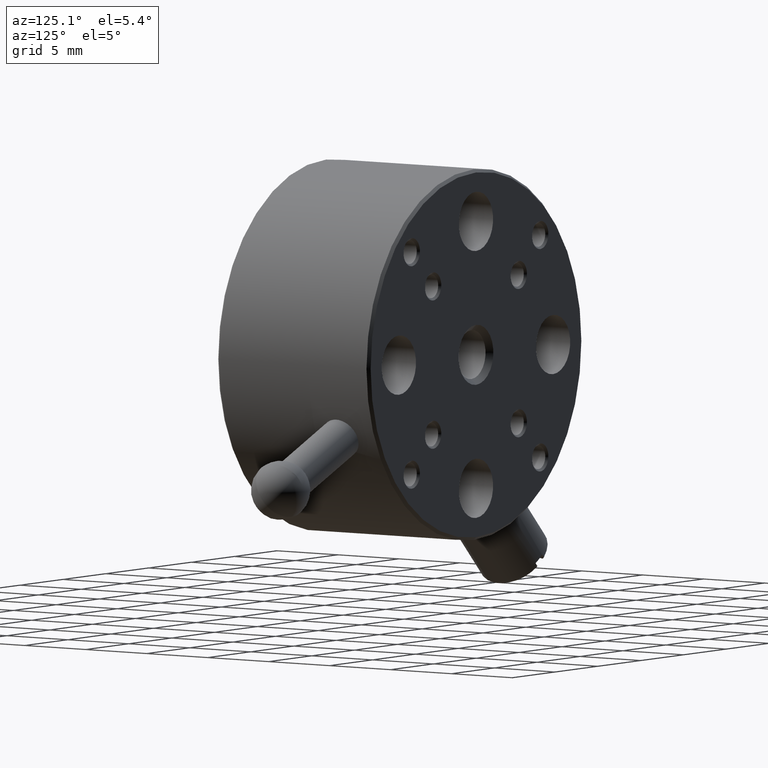
[diagram: clean part render]
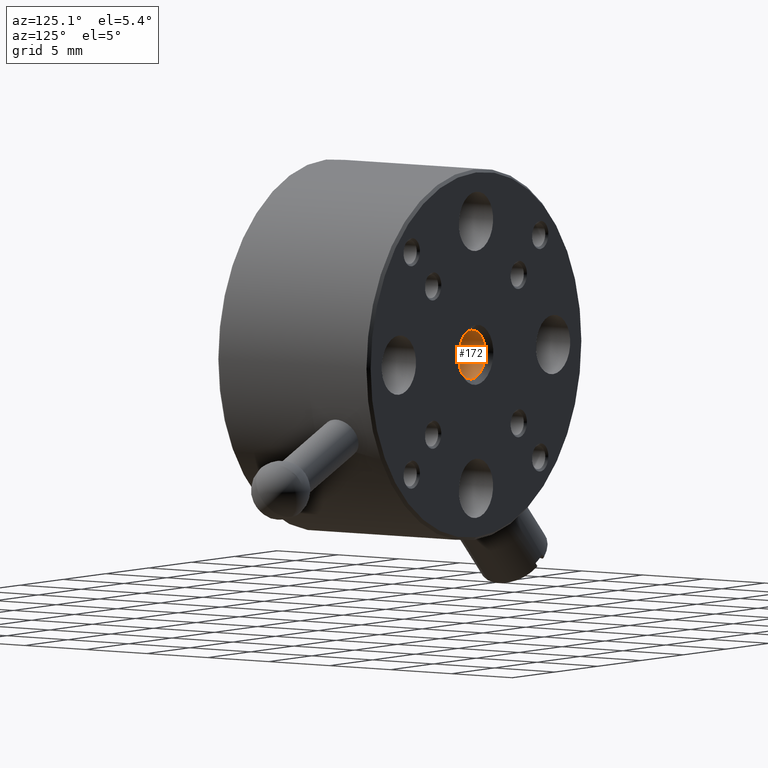
[diagram: same view with one face highlighted and labeled with its STEP entity id]
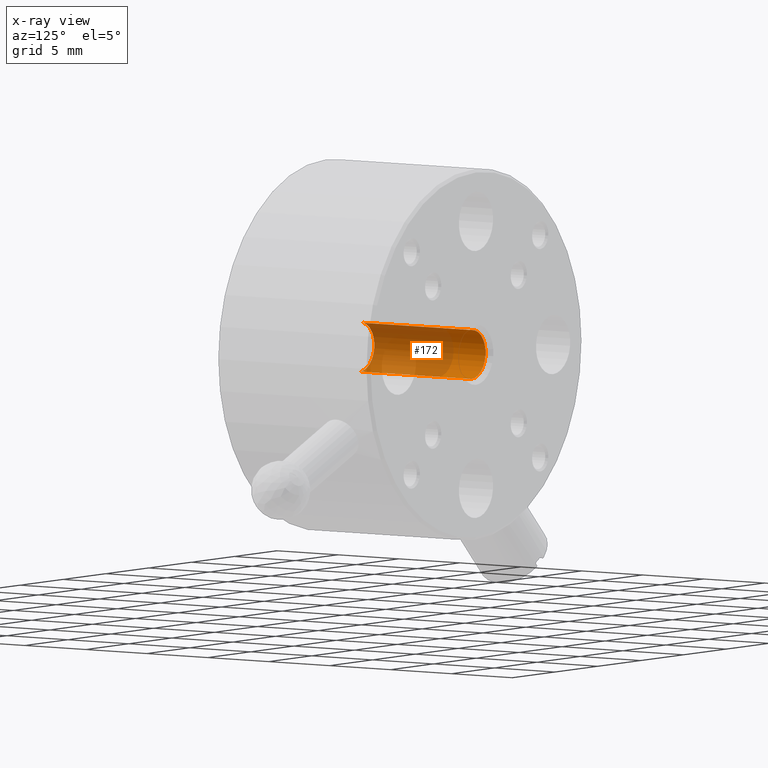
[diagram: x-ray of the same camera — body ghosted, the highlighted face saturated]
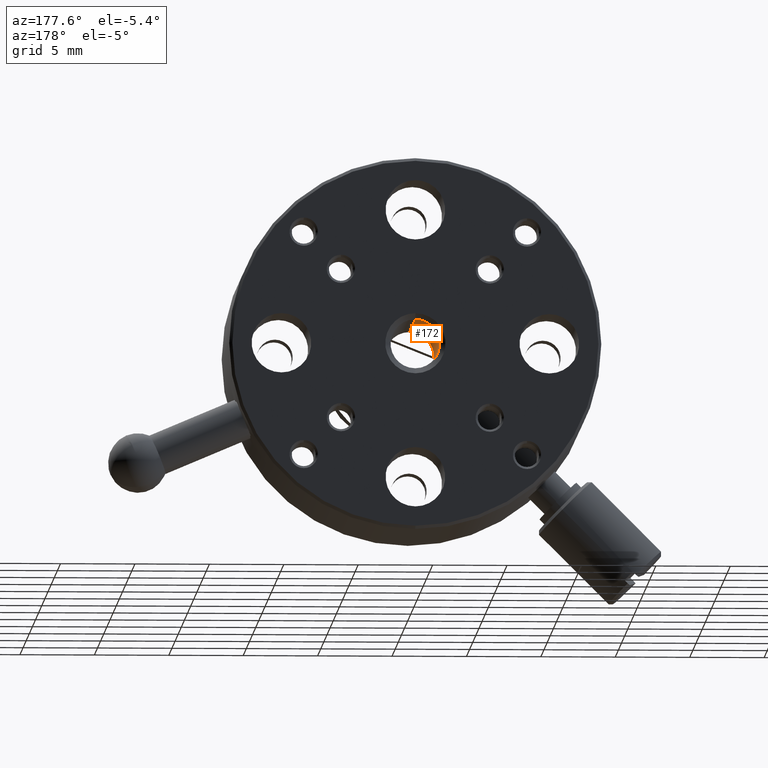
[diagram: same view with one face highlighted and labeled with its STEP entity id]
A machine part, auxiliary view. The second image highlights one B-rep face of the part: STEP entity #172.
The next image is the same camera in x-ray: the body ghosted, the highlighted face saturated — about 71% of this face is hidden behind the body in this view.
A second angle (auxiliary view) of the same face is appended — the face is thin or edge-on in the first view.
In plain terms, the highlighted cylindrical surface (edge-blend (fillet) strip) has radius 1.65 mm, axis along (-0, 1, -0).
Its self-contained STEP definition (entity closure, byte-faithful):
#16 = CIRCLE ( 'NONE', #123, 1.649999999999986366 ) ;
#90 = DIRECTION ( 'NONE',  ( -0.000000000000000000, 1.000000000000000000, -0.000000000000000000 ) ) ;
#123 = AXIS2_PLACEMENT_3D ( 'NONE', #2827, #1602, #423 ) ;
#172 = ADVANCED_FACE ( 'NONE', ( #1120 ), #1850, .F. ) ;
#369 = EDGE_CURVE ( 'NONE', #1561, #926, #16, .T. ) ;
#402 = VECTOR ( 'NONE', #90, 1000.000000000000000 ) ;
#405 = DIRECTION ( 'NONE',  ( -0.000000000000000000, 1.000000000000000000, -0.000000000000000000 ) ) ;
#423 = DIRECTION ( 'NONE',  ( 0.000000000000000000, 0.000000000000000000, 1.000000000000000000 ) ) ;
#501 = VERTEX_POINT ( 'NONE', #927 ) ;
#636 = LINE ( 'NONE', #1638, #946 ) ;
#893 = AXIS2_PLACEMENT_3D ( 'NONE', #2694, #2739, #2957 ) ;
#926 = VERTEX_POINT ( 'NONE', #2155 ) ;
#927 = CARTESIAN_POINT ( 'NONE',  ( 2.020667218593131276E-16, 12.04500000000000171, -1.649999999999998801 ) ) ;
#946 = VECTOR ( 'NONE', #405, 1000.000000000000000 ) ;
#1055 = LINE ( 'NONE', #1790, #402 ) ;
#1103 = AXIS2_PLACEMENT_3D ( 'NONE', #2082, #2566, #2847 ) ;
#1120 = FACE_OUTER_BOUND ( 'NONE', #2532, .T. ) ;
#1561 = VERTEX_POINT ( 'NONE', #2547 ) ;
#1602 = DIRECTION ( 'NONE',  ( -0.000000000000000000, 1.000000000000000000, -0.000000000000000000 ) ) ;
#1638 = CARTESIAN_POINT ( 'NONE',  ( -9.680597290791529681E-71, 12.42000000000000171, 1.649999999999992584 ) ) ;
#1790 = CARTESIAN_POINT ( 'NONE',  ( 2.020667218593123634E-16, 12.42000000000000171, -1.649999999999992584 ) ) ;
#1808 = ORIENTED_EDGE ( 'NONE', *, *, #2405, .T. ) ;
#1850 = CYLINDRICAL_SURFACE ( 'NONE', #1103, 1.649999999999992584 ) ;
#1883 = ORIENTED_EDGE ( 'NONE', *, *, #2993, .F. ) ;
#2082 = CARTESIAN_POINT ( 'NONE',  ( -9.680597290791529681E-71, 12.42000000000000171, 1.680252954079175146E-70 ) ) ;
#2155 = CARTESIAN_POINT ( 'NONE',  ( -9.680597290791529681E-71, 2.920000000000007923, 1.649999999999986366 ) ) ;
#2186 = ORIENTED_EDGE ( 'NONE', *, *, #2635, .T. ) ;
#2291 = CIRCLE ( 'NONE', #893, 1.649999999999998579 ) ;
#2405 = EDGE_CURVE ( 'NONE', #1561, #501, #1055, .T. ) ;
#2532 = EDGE_LOOP ( 'NONE', ( #3107, #1808, #2186, #1883 ) ) ;
#2547 = CARTESIAN_POINT ( 'NONE',  ( 2.020667218593119443E-16, 2.920000000000007923, -1.649999999999986366 ) ) ;
#2566 = DIRECTION ( 'NONE',  ( -0.000000000000000000, 1.000000000000000000, -0.000000000000000000 ) ) ;
#2635 = EDGE_CURVE ( 'NONE', #501, #3013, #2291, .T. ) ;
#2694 = CARTESIAN_POINT ( 'NONE',  ( -9.680597290791529681E-71, 12.04500000000000171, 1.680252954079175146E-70 ) ) ;
#2739 = DIRECTION ( 'NONE',  ( -0.000000000000000000, 1.000000000000000000, -0.000000000000000000 ) ) ;
#2827 = CARTESIAN_POINT ( 'NONE',  ( -9.680597290791529681E-71, 2.920000000000007923, 1.680252954079175146E-70 ) ) ;
#2847 = DIRECTION ( 'NONE',  ( 0.000000000000000000, 0.000000000000000000, 1.000000000000000000 ) ) ;
#2957 = DIRECTION ( 'NONE',  ( 0.000000000000000000, 0.000000000000000000, 1.000000000000000000 ) ) ;
#2993 = EDGE_CURVE ( 'NONE', #926, #3013, #636, .T. ) ;
#3013 = VERTEX_POINT ( 'NONE', #3157 ) ;
#3107 = ORIENTED_EDGE ( 'NONE', *, *, #369, .F. ) ;
#3157 = CARTESIAN_POINT ( 'NONE',  ( -9.680597290791529681E-71, 12.04500000000000171, 1.649999999999998579 ) ) ;